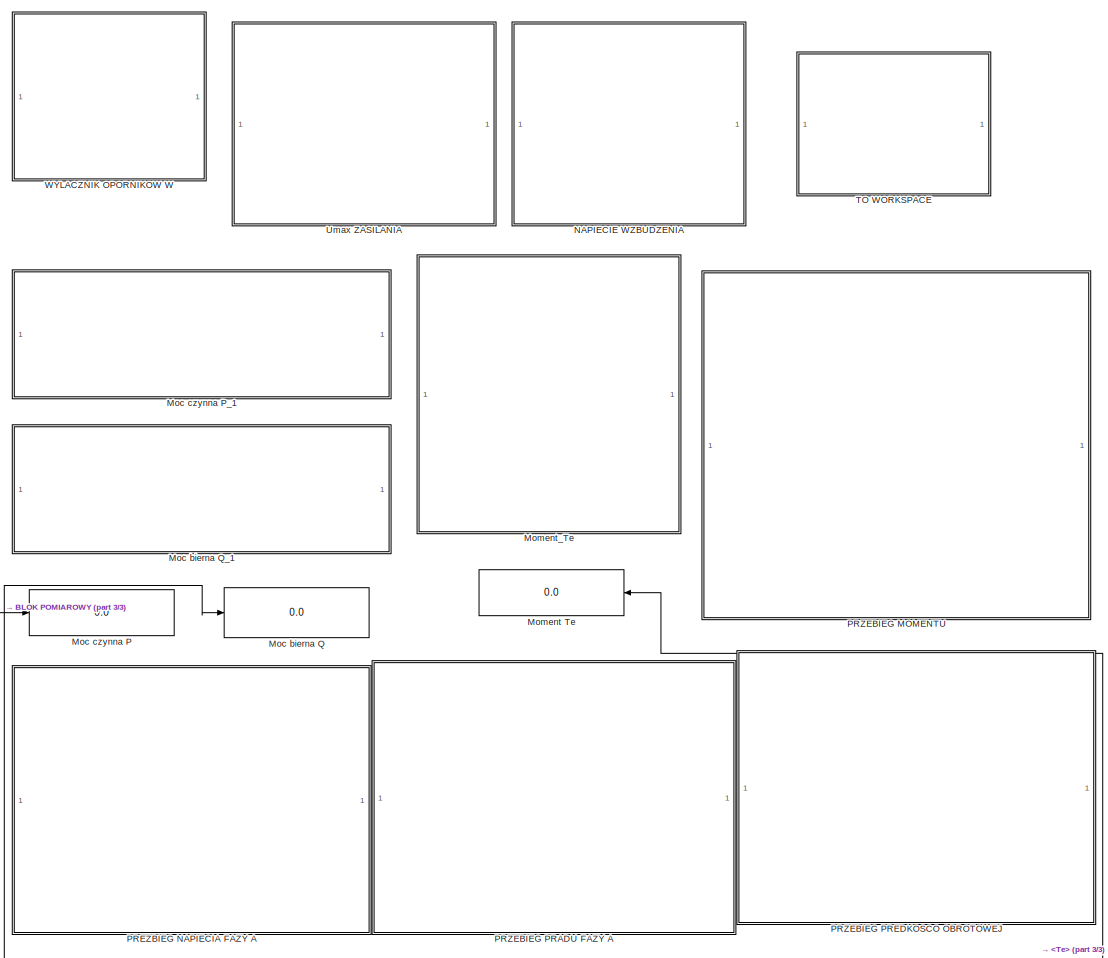
[diagram: root canvas - part 1/3, right side, full height]
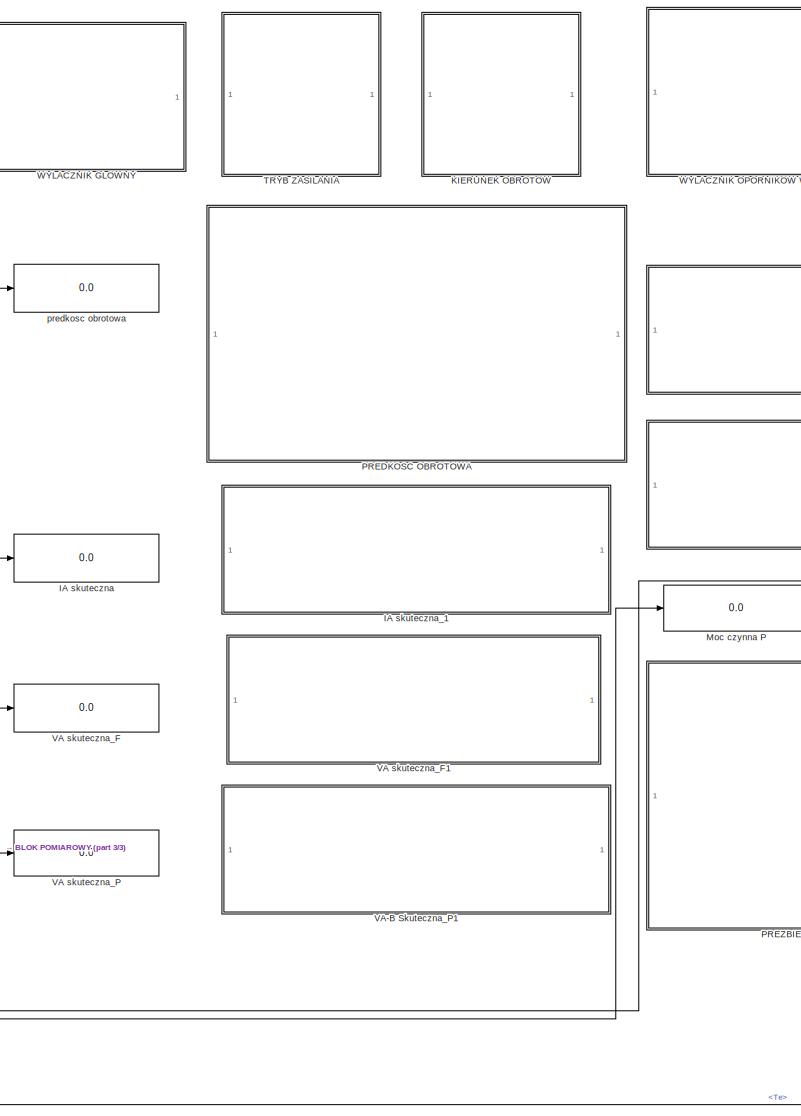
[diagram: root canvas - part 2/3, center side, full height]
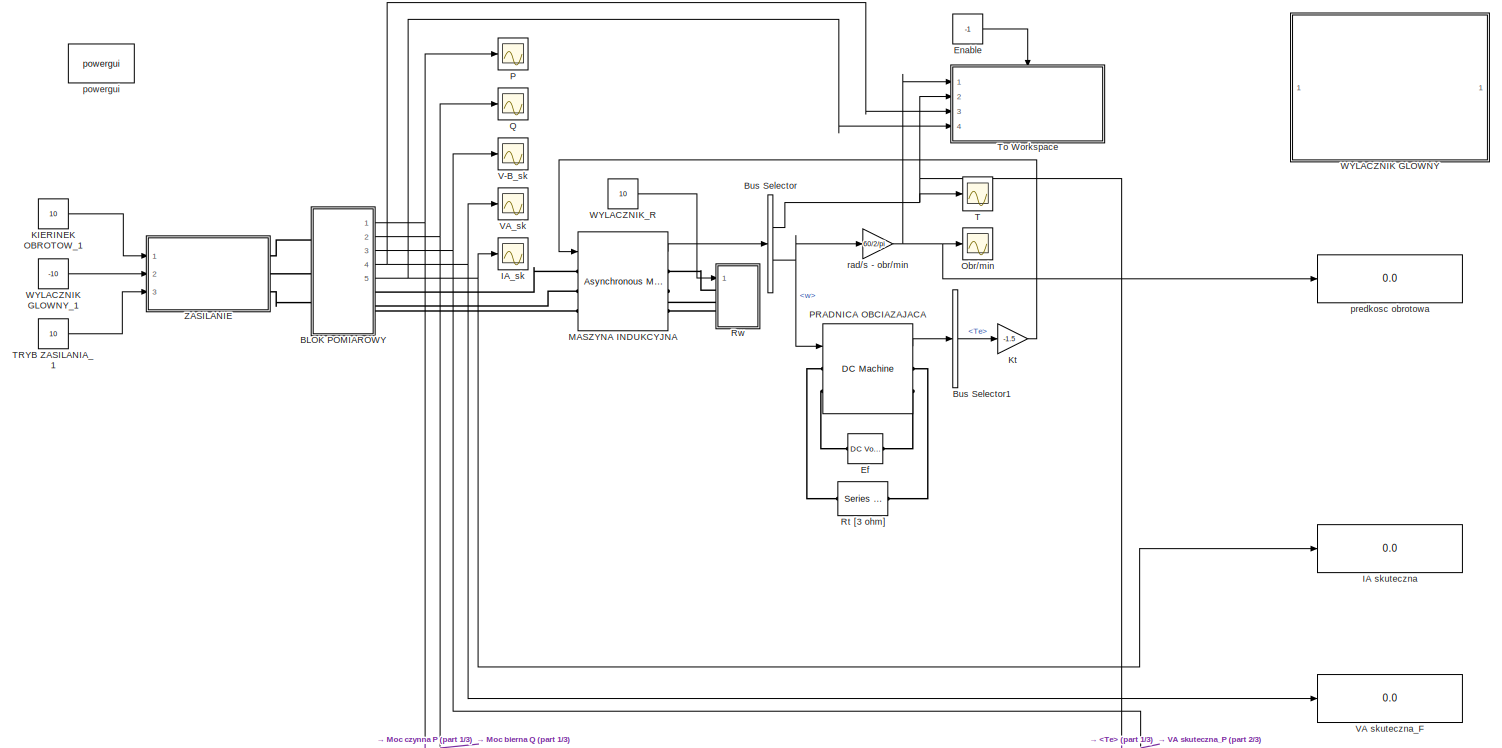
[diagram: root canvas - part 3/3, middle left region]
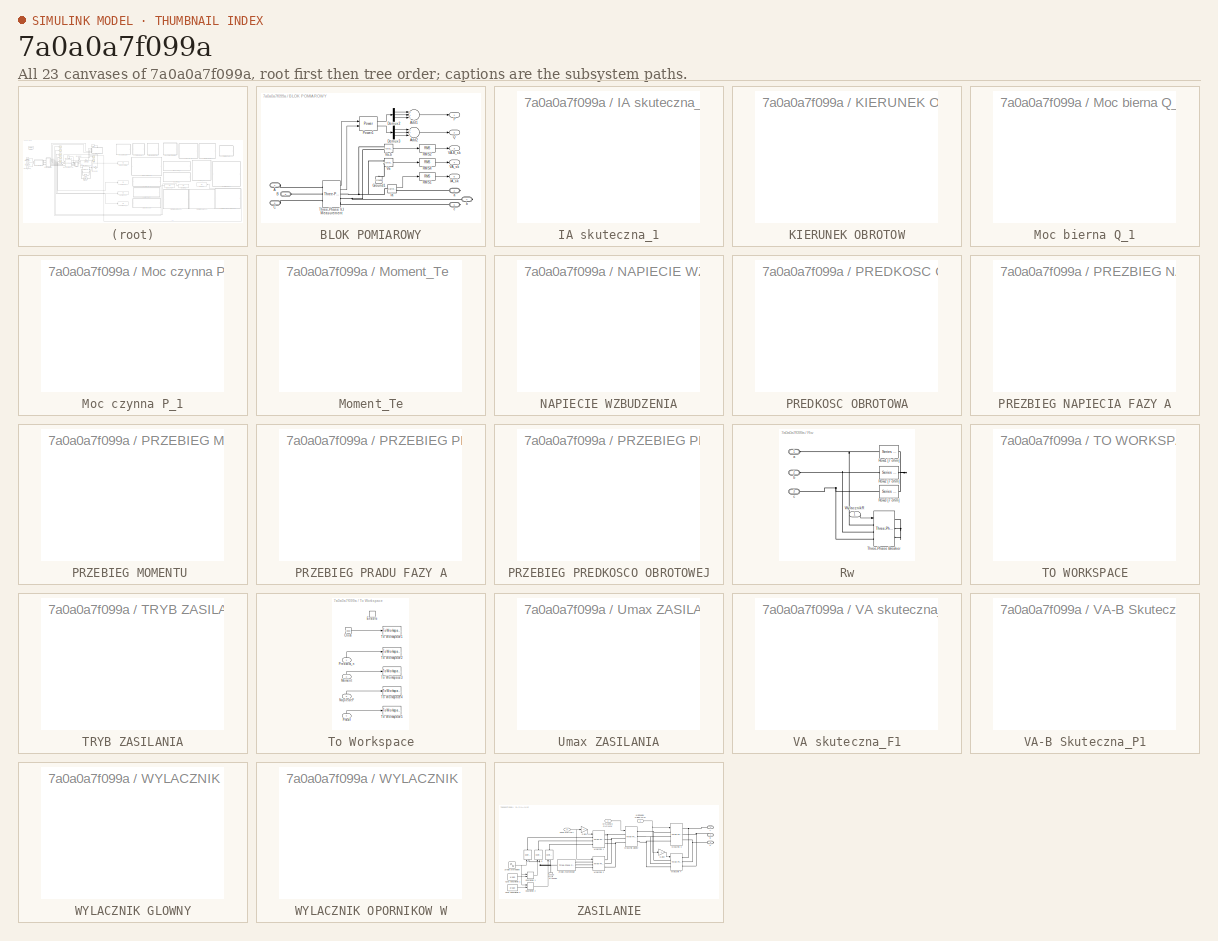
[diagram: thumbnail index - all 23 canvases of the model, root first then tree order]
MODEL slx_7a0a0a7f099a
KIND model
CONFIG AbsTol = auto
CONFIG FixedStep = auto
CONFIG MaxStep = auto
CONFIG MinStep = auto
CONFIG RelTol = auto
CONFIG SampleTimeConstraint = Unconstrained
CONFIG Solver = ode23tb
CONFIG SolverMode = Auto
CONFIG SolverName = ode23tb
CONFIG StartTime = 0.0
CONFIG StopTime = inf
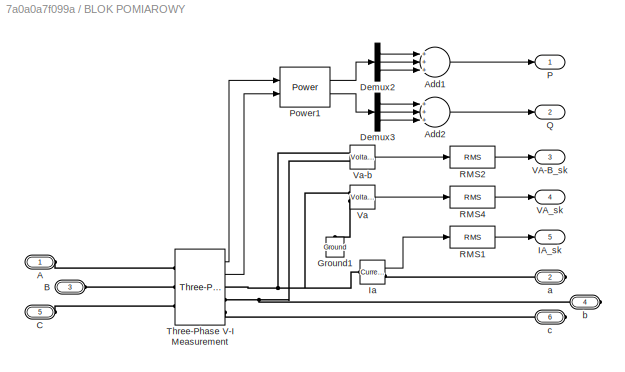
BLOCK [SubSystem] BLOK POMIAROWY
  Ports = [0, 5, 0, 0, 0, 3, 3]
  RequestExecContextInheritance = off
BLOCK [PMIOPort] BLOK POMIAROWY/A
  Port = 1
  Side = Left
BLOCK [Sum] BLOK POMIAROWY/Add1
  InputSameDT = off
  Inputs = +++
  OutDataTypeStr = Inherit: Inherit via internal rule
  Ports = [3, 1]
  SaturateOnIntegerOverflow = off
BLOCK [Sum] BLOK POMIAROWY/Add2
  InputSameDT = off
  Inputs = +++
  OutDataTypeStr = Inherit: Inherit via internal rule
  Ports = [3, 1]
  SaturateOnIntegerOverflow = off
BLOCK [PMIOPort] BLOK POMIAROWY/B
  Port = 3
  Side = Left
BLOCK [PMIOPort] BLOK POMIAROWY/C
  Port = 5
  Side = Left
BLOCK [Demux] BLOK POMIAROWY/Demux2
  DisplayOption = bar
  Outputs = 3
  Ports = [1, 3]
BLOCK [Demux] BLOK POMIAROWY/Demux3
  DisplayOption = bar
  Outputs = 3
  Ports = [1, 3]
BLOCK [Reference] BLOK POMIAROWY/Ground1  REF=powerlib/Elements/Ground
  AttributesFormatString = \n
  LConnTagsString = a
  Ports = [0, 0, 0, 0, 0, 1]
  SourceBlock = powerlib/Elements/Ground
  SourceType = Ground
BLOCK [Outport] BLOK POMIAROWY/IA_sk
  IconDisplay = Port number
  Port = 5
BLOCK [Reference] BLOK POMIAROWY/Ia  REF=powerlib/Measurements/Current Measurement
  OutputType = Complex
  PSBequivalent = 0
  PhasorSimulation = off
  Ports = [0, 1, 0, 0, 0, 1, 1]
  SourceBlock = powerlib/Measurements/Current Measurement
  SourceType = Current Measurement
  UserDataPersistent = on
BLOCK [Outport] BLOK POMIAROWY/P
  IconDisplay = Port number
BLOCK [Reference] BLOK POMIAROWY/Power1  REF=powerlib_meascontrol/Measurements/Power
  Freq = 50
  Iinit = [1, 0]
  Ports = [2, 2]
  SourceBlock = powerlib_meascontrol/Measurements/Power
  SourceType = Power
  Ts = 0
  Vinit = [1, 0]
BLOCK [Outport] BLOK POMIAROWY/Q
  IconDisplay = Port number
  Port = 2
BLOCK [Reference] BLOK POMIAROWY/RMS1  REF=powerlib_meascontrol/Measurements/RMS
  Freq = 50
  Ports = [1, 1]
  RMSInit = 120
  SourceBlock = powerlib_meascontrol/Measurements/RMS
  SourceType = RMS
  TrueRMS = on
  Ts = 0
BLOCK [Reference] BLOK POMIAROWY/RMS2  REF=powerlib_meascontrol/Measurements/RMS
  Freq = 50
  Ports = [1, 1]
  RMSInit = 120
  SourceBlock = powerlib_meascontrol/Measurements/RMS
  SourceType = RMS
  TrueRMS = on
  Ts = 0
BLOCK [Reference] BLOK POMIAROWY/RMS4  REF=powerlib_meascontrol/Measurements/RMS
  Freq = 50
  Ports = [1, 1]
  RMSInit = 120
  SourceBlock = powerlib_meascontrol/Measurements/RMS
  SourceType = RMS
  TrueRMS = on
  Ts = 0
BLOCK [Reference] BLOK POMIAROWY/Three-Phase V-I Measurement  REF=powerlib/Measurements/Three-Phase
V-I Measurement
  CurrentMeasurement = yes
  Ipu = off
  LabelI = Iabc
  LabelV = Vabc
  OutputType = Complex
  PSBequivalent = 0
  Pbase = 100e6
  PhasorSimulation = off
  Ports = [0, 2, 0, 0, 0, 3, 3]
  SetLabelI = off
  SetLabelV = off
  SourceBlock = powerlib/Measurements/Three-Phase\nV-I Measurement
  SourceType = Three-Phase VI Measurement
  Vbase = 500e3
  VoltageMeasurement = phase-to-ground
  Vpu = off
  VpuLL = off
BLOCK [Outport] BLOK POMIAROWY/VA-B_sk
  IconDisplay = Port number
  Port = 3
BLOCK [Outport] BLOK POMIAROWY/VA_sk
  IconDisplay = Port number
  Port = 4
BLOCK [Reference] BLOK POMIAROWY/Va   REF=powerlib/Measurements/Voltage Measurement
  OutputType = Complex
  PSBequivalent = 0
  PhasorSimulation = off
  Ports = [0, 1, 0, 0, 0, 2]
  SourceBlock = powerlib/Measurements/Voltage Measurement
  SourceType = Voltage Measurement
  UserDataPersistent = on
BLOCK [Reference] BLOK POMIAROWY/Va-b  REF=powerlib/Measurements/Voltage Measurement
  OutputType = Complex
  PSBequivalent = 0
  PhasorSimulation = off
  Ports = [0, 1, 0, 0, 0, 2]
  SourceBlock = powerlib/Measurements/Voltage Measurement
  SourceType = Voltage Measurement
  UserDataPersistent = on
BLOCK [PMIOPort] BLOK POMIAROWY/a
  Port = 2
  Side = Right
BLOCK [PMIOPort] BLOK POMIAROWY/b
  Port = 4
  Side = Right
BLOCK [PMIOPort] BLOK POMIAROWY/c
  Port = 6
  Side = Right
BLOCK [BusSelector] Bus Selector
  OutputSignals = Te,w
  Ports = [1, 2]
BLOCK [BusSelector] Bus Selector1
  OutputSignals = Te
  Ports = [1, 1]
BLOCK [Reference] Ef  REF=powerlib/Electrical
Sources/DC Voltage Source
  Amplitude = 0
  AttributesFormatString = \n
  Description = source block
  Measurements = None
  Ports = [0, 0, 0, 0, 0, 1, 1]
  SourceBlock = powerlib/Electrical\nSources/DC Voltage Source
  SourceType = DC Voltage Source
BLOCK [Constant] Enable
  Value = -1
BLOCK [Display] IA skuteczna
  Decimation = 1
  Ports = [1]
BLOCK [SubSystem] IA skuteczna_1
  DialogController = hmiCreateDDGDialog
  IsWebBlock = on
  MaskHideContents = on
  Ports = []
  RequestExecContextInheritance = off
BLOCK [Scope] IA_sk
  Floating = off
  LimitDataPoints = off
  NumInputPorts = 1
  Ports = [1]
  SaveName = ScopeData4
BLOCK [Constant] KIERINEK OBROTOW_1
  Value = 10
BLOCK [SubSystem] KIERUNEK OBROTOW
  DialogController = hmiCreateDDGDialog
  IsWebBlock = on
  MaskHideContents = on
  Ports = []
  RequestExecContextInheritance = off
BLOCK [Gain] Kt
  Gain = -1.5
  OutDataTypeStr = Inherit: Inherit via internal rule
  ParamDataTypeStr = Inherit: Inherit via internal rule
  SaturateOnIntegerOverflow = off
BLOCK [Reference] MASZYNA INDUKCYJNA  REF=powerlib/Machines/Asynchronous Machine
SI Units
  AttributesFormatString = \n
  Cage1 = [ 0.022 0.226/377]
  Cage2 = [ 0.022 0.226/377]
  InitialConditions = [ 1,0   0,0,0   0,0,0 ]
  IterativeModel = Trapezoidal non iterative
  Lm = 0.2389
  LoadFlowParameters = 0
  MeasurementBus = on
  Mechanical = [ 0.55  8.25e-3 2]
  MechanicalLoad = Torque Tm
  NominalParameters = [ 3000, 380, 50 ]
  Pmec = 0
  PolePairs = 2
  Ports = [1, 1, 0, 0, 0, 3, 3]
  PresetModel = No
  ReferenceFrame = Stationary
  Rotor = [ 1.91  0.0106 ]
  RotorType = Wound
  Saturation = [14.03593122, 27.81365428, 53.79336849, 72.68890987, 97.98006896, 148.6815601, 215.7428561, 302.9841135, 428.7778367 ; 230, 322, 414, 460, 506, 552, 598, 644, 690]
  ShowDetailedParameters = on
  SimulateSaturation = off
  SourceBlock = powerlib/Machines/Asynchronous Machine\nSI Units
  SourceType = Asynchronous Machine
  Stator = [ 1.2  0.0106 ]
  TsBlock = -1
  TsPowergui = 0
  Units = SI
BLOCK [Display] Moc bierna Q
  Decimation = 1
  Ports = [1]
BLOCK [SubSystem] Moc bierna Q_1
  DialogController = hmiCreateDDGDialog
  IsWebBlock = on
  MaskHideContents = on
  Ports = []
  RequestExecContextInheritance = off
BLOCK [Display] Moc czynna P
  Decimation = 1
  Ports = [1]
BLOCK [SubSystem] Moc czynna P_1
  DialogController = hmiCreateDDGDialog
  IsWebBlock = on
  MaskHideContents = on
  Ports = []
  RequestExecContextInheritance = off
BLOCK [Display] Moment Te
  Decimation = 1
  Ports = [1]
BLOCK [SubSystem] Moment_Te
  DialogController = hmiCreateDDGDialog
  IsWebBlock = on
  MaskHideContents = on
  Ports = []
  RequestExecContextInheritance = off
BLOCK [SubSystem] NAPIECIE WZBUDZENIA
  DialogController = hmiCreateDDGDialog
  IsWebBlock = on
  MaskHideContents = on
  Ports = []
  RequestExecContextInheritance = off
BLOCK [Scope] Obr//min
  Floating = off
  LimitDataPoints = off
  NumInputPorts = 1
  Ports = [1]
  YMax = 1493.66
  YMin = 1493.64
BLOCK [Scope] P
  Floating = off
  LimitDataPoints = off
  NumInputPorts = 1
  Ports = [1]
  SaveName = ScopeData1
  TimeRange = 0.1315942956302907
  YMax = 1470.2225
  YMin = 1454.8675
BLOCK [Reference] PRADNICA OBCIAZAJACA  REF=powerlib/Machines/DC Machine
  AttributesFormatString = \n
  Bm = 0.002953
  FieldType = Wound
  Ifinit = 1
  J = 0.02215
  Ke = 1.8
  Kt = 1.8
  Laf = 1.236
  MachineConstant = Torque constant (N.m/A)
  MeasurementBus = on
  MechanicalLoad = Speed w
  Ports = [1, 1, 0, 0, 0, 2, 2]
  PresetModel = No
  RLa = [2.5 10.4e-3]
  RLf = [179 4.1]
  ShowDetailedParameters = on
  SourceBlock = powerlib/Machines/DC Machine
  SourceType = DC machine
  Tf = 0.5161
  TsBlock = -1
  TsPowergui = 0
  w0 = 1
BLOCK [SubSystem] PREDKOSC OBROTOWA
  DialogController = hmiCreateDDGDialog
  IsWebBlock = on
  MaskHideContents = on
  Ports = []
  RequestExecContextInheritance = off
BLOCK [SubSystem] PREZBIEG NAPIECIA FAZY A
  DialogController = hmiCreateDDGDialog
  IsWebBlock = on
  MaskHideContents = on
  Ports = []
  RequestExecContextInheritance = off
BLOCK [SubSystem] PRZEBIEG MOMENTU 
  DialogController = hmiCreateDDGDialog
  IsWebBlock = on
  MaskHideContents = on
  Ports = []
  RequestExecContextInheritance = off
BLOCK [SubSystem] PRZEBIEG PRADU FAZY A
  DialogController = hmiCreateDDGDialog
  IsWebBlock = on
  MaskHideContents = on
  Ports = []
  RequestExecContextInheritance = off
BLOCK [SubSystem] PRZEBIEG PREDKOSCO OBROTOWEJ
  DialogController = hmiCreateDDGDialog
  IsWebBlock = on
  MaskHideContents = on
  Ports = []
  RequestExecContextInheritance = off
BLOCK [Scope] Q
  Floating = off
  LimitDataPoints = off
  NumInputPorts = 1
  Ports = [1]
  SaveName = ScopeData2
  TimeRange = 0.1315942956302907
  YMax = 1470.2225
  YMin = 1454.8675
BLOCK [Reference] Rt [3 ohm]  REF=powerlib/Elements/Series RLC Branch
  AttributesFormatString = \n
  BranchType = R
  Capacitance = []
  Inductance = []
  InitialCurrent = 0
  InitialVoltage = 0
  LConnTagsString = __new0
  Measurements = None
  Ports = [0, 0, 0, 0, 0, 1, 1]
  RConnTagsString = __new0
  Resistance = 3
  SetiL0 = off
  Setx0 = off
  SourceBlock = powerlib/Elements/Series RLC Branch
  SourceType = Series RLC Branch
BLOCK [SubSystem] Rw
  Ports = [1, 0, 0, 0, 0, 3]
  RequestExecContextInheritance = off
BLOCK [Reference] Rw/Row1 [7 ohm]  REF=powerlib/Elements/Series RLC Branch
  AttributesFormatString = \n
  BranchType = R
  Capacitance = []
  Inductance = []
  InitialCurrent = 0
  InitialVoltage = 0
  LConnTagsString = __new0
  Measurements = None
  Ports = [0, 0, 0, 0, 0, 1, 1]
  RConnTagsString = __new0
  Resistance = 7
  SetiL0 = off
  Setx0 = off
  SourceBlock = powerlib/Elements/Series RLC Branch
  SourceType = Series RLC Branch
BLOCK [Reference] Rw/Row2 [7 ohm]  REF=powerlib/Elements/Series RLC Branch
  AttributesFormatString = \n
  BranchType = R
  Capacitance = []
  Inductance = []
  InitialCurrent = 0
  InitialVoltage = 0
  LConnTagsString = __new0
  Measurements = None
  Ports = [0, 0, 0, 0, 0, 1, 1]
  RConnTagsString = __new0
  Resistance = 7
  SetiL0 = off
  Setx0 = off
  SourceBlock = powerlib/Elements/Series RLC Branch
  SourceType = Series RLC Branch
BLOCK [Reference] Rw/Row3 [7 ohm]  REF=powerlib/Elements/Series RLC Branch
  AttributesFormatString = \n
  BranchType = R
  Capacitance = []
  Inductance = []
  InitialCurrent = 0
  InitialVoltage = 0
  LConnTagsString = __new0
  Measurements = None
  Ports = [0, 0, 0, 0, 0, 1, 1]
  RConnTagsString = __new0
  Resistance = 7
  SetiL0 = off
  Setx0 = off
  SourceBlock = powerlib/Elements/Series RLC Branch
  SourceType = Series RLC Branch
BLOCK [Reference] Rw/Three-Phase Breaker  REF=powerlib/Elements/Three-Phase Breaker
  BreakerResistance = 0.01
  External = on
  InitialState = open
  Measurements = None
  Ports = [1, 0, 0, 0, 0, 3, 3]
  SnubberCapacitance = inf
  SnubberResistance = 1e6
  SourceBlock = powerlib/Elements/Three-Phase Breaker
  SourceType = Three-Phase Breaker
  SwitchA = on
  SwitchB = on
  SwitchC = on
  SwitchTimes = [1/60  5/60]
BLOCK [Inport] Rw/WylacznikR
  IconDisplay = Port number
BLOCK [PMIOPort] Rw/a
  Port = 1
  Side = Left
BLOCK [PMIOPort] Rw/b
  Port = 2
  Side = Left
BLOCK [PMIOPort] Rw/c
  Port = 3
  Side = Left
BLOCK [Scope] T
  Floating = off
  LimitDataPoints = off
  NumInputPorts = 1
  Ports = [1]
  SaveName = ScopeData6
BLOCK [SubSystem] TO WORKSPACE
  DialogController = hmiCreateDDGDialog
  IsWebBlock = on
  MaskHideContents = on
  Ports = []
  RequestExecContextInheritance = off
BLOCK [SubSystem] TRYB ZASILANIA
  DialogController = hmiCreateDDGDialog
  IsWebBlock = on
  MaskHideContents = on
  Ports = []
  RequestExecContextInheritance = off
BLOCK [Constant] TRYB ZASILANIA_1
  Value = 10
BLOCK [SubSystem] To Workspace
  Ports = [4, 0, 1]
  RequestExecContextInheritance = off
BLOCK [Clock] To Workspace/Clock
BLOCK [EnablePort] To Workspace/Enable
  Ports = []
BLOCK [Inport] To Workspace/Moment
  IconDisplay = Port number
  Port = 2
BLOCK [Inport] To Workspace/NapiecieF
  IconDisplay = Port number
  Port = 3
BLOCK [Inport] To Workspace/Pradf
  IconDisplay = Port number
  Port = 4
BLOCK [Inport] To Workspace/Predkocs_n
  IconDisplay = Port number
BLOCK [ToWorkspace] To Workspace/To Workspace1
  FixptAsFi = on
  MaxDataPoints = inf
  Ports = [1]
  SampleTime = -1
  Save2DSignal = 3-D array (concatenate along third dimension)
  SaveFormat = Timeseries
  VariableName = czas
BLOCK [ToWorkspace] To Workspace/To Workspace2
  FixptAsFi = on
  MaxDataPoints = inf
  Ports = [1]
  SampleTime = -1
  Save2DSignal = 3-D array (concatenate along third dimension)
  SaveFormat = Timeseries
  VariableName = predkosc_n
BLOCK [ToWorkspace] To Workspace/To Workspace3
  FixptAsFi = on
  MaxDataPoints = inf
  Ports = [1]
  SampleTime = -1
  Save2DSignal = 3-D array (concatenate along third dimension)
  SaveFormat = Timeseries
  VariableName = moment
BLOCK [ToWorkspace] To Workspace/To Workspace4
  FixptAsFi = on
  MaxDataPoints = inf
  Ports = [1]
  SampleTime = -1
  Save2DSignal = 3-D array (concatenate along third dimension)
  SaveFormat = Timeseries
  VariableName = NapiecieF
BLOCK [ToWorkspace] To Workspace/To Workspace5
  FixptAsFi = on
  MaxDataPoints = inf
  Ports = [1]
  SampleTime = -1
  Save2DSignal = 3-D array (concatenate along third dimension)
  SaveFormat = Timeseries
  VariableName = PradF
BLOCK [SubSystem] Umax ZASILANIA
  DialogController = hmiCreateDDGDialog
  IsWebBlock = on
  MaskHideContents = on
  Ports = []
  RequestExecContextInheritance = off
BLOCK [Scope] V-B_sk
  Floating = off
  LimitDataPoints = off
  NumInputPorts = 1
  Ports = [1]
  SaveName = ScopeData5
BLOCK [Display] VA skuteczna_F
  Decimation = 1
  Ports = [1]
BLOCK [SubSystem] VA skuteczna_F1
  DialogController = hmiCreateDDGDialog
  IsWebBlock = on
  MaskHideContents = on
  Ports = []
  RequestExecContextInheritance = off
BLOCK [Display] VA skuteczna_P
  Decimation = 1
  Ports = [1]
BLOCK [SubSystem] VA-B Skuteczna_P1
  DialogController = hmiCreateDDGDialog
  IsWebBlock = on
  MaskHideContents = on
  Ports = []
  RequestExecContextInheritance = off
BLOCK [Scope] VA_sk
  Floating = off
  LimitDataPoints = off
  NumInputPorts = 1
  Ports = [1]
  SaveName = ScopeData3
BLOCK [SubSystem] WYLACZNIK GLOWNY
  DialogController = hmiCreateDDGDialog
  IsWebBlock = on
  MaskHideContents = on
  Ports = []
  RequestExecContextInheritance = off
BLOCK [Constant] WYLACZNIK GLOWNY_1
  Value = -10
BLOCK [SubSystem] WYLACZNIK OPORNIKOW W
  DialogController = hmiCreateDDGDialog
  IsWebBlock = on
  MaskHideContents = on
  Ports = []
  RequestExecContextInheritance = off
BLOCK [Constant] WYLACZNIK_R
  Value = 10
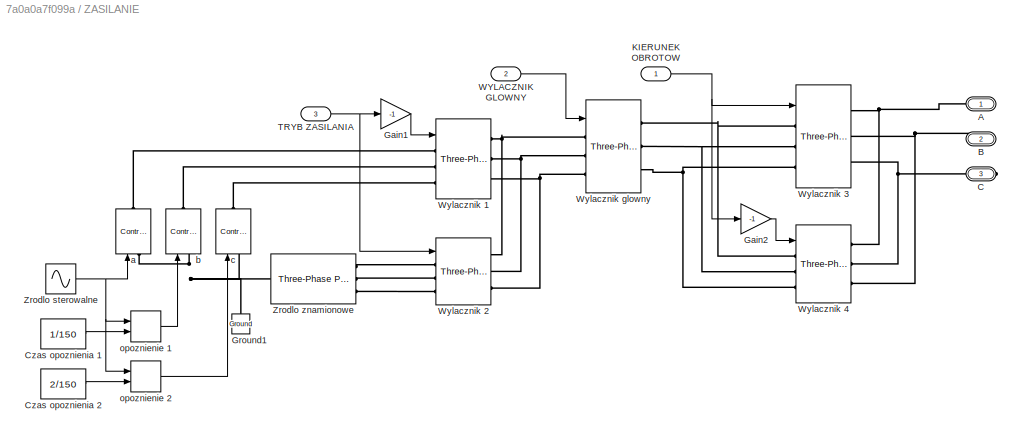
BLOCK [SubSystem] ZASILANIE
  Ports = [3, 0, 0, 0, 0, 0, 3]
  RequestExecContextInheritance = off
BLOCK [PMIOPort] ZASILANIE/A
  Port = 1
  Side = Right
BLOCK [PMIOPort] ZASILANIE/B
  Port = 2
  Side = Right
BLOCK [PMIOPort] ZASILANIE/C
  Port = 3
  Side = Right
BLOCK [Constant] ZASILANIE/Czas opoznienia 1
  Value = 1/150
BLOCK [Constant] ZASILANIE/Czas opoznienia 2
  Value = 2/150
BLOCK [Gain] ZASILANIE/Gain1
  Gain = -1
  OutDataTypeStr = Inherit: Inherit via internal rule
  ParamDataTypeStr = Inherit: Inherit via internal rule
  SaturateOnIntegerOverflow = off
BLOCK [Gain] ZASILANIE/Gain2
  Gain = -1
  OutDataTypeStr = Inherit: Inherit via internal rule
  ParamDataTypeStr = Inherit: Inherit via internal rule
  SaturateOnIntegerOverflow = off
BLOCK [Reference] ZASILANIE/Ground1  REF=powerlib/Elements/Ground
  AttributesFormatString = \n
  LConnTagsString = a
  Ports = [0, 0, 0, 0, 0, 1]
  SourceBlock = powerlib/Elements/Ground
  SourceType = Ground
BLOCK [Inport] ZASILANIE/KIERUNEK OBROTOW
  IconDisplay = Port number
BLOCK [Inport] ZASILANIE/TRYB ZASILANIA
  IconDisplay = Port number
  Port = 3
BLOCK [Inport] ZASILANIE/WYLACZNIK GLOWNY
  IconDisplay = Port number
  Port = 2
BLOCK [Reference] ZASILANIE/Wylacznik  1  REF=powerlib/Elements/Three-Phase Breaker
  BreakerResistance = 0.01
  External = on
  InitialState = open
  Measurements = None
  Ports = [1, 0, 0, 0, 0, 3, 3]
  SnubberCapacitance = inf
  SnubberResistance = 1e6
  SourceBlock = powerlib/Elements/Three-Phase Breaker
  SourceType = Three-Phase Breaker
  SwitchA = on
  SwitchB = on
  SwitchC = on
  SwitchTimes = [1/60  5/60]
BLOCK [Reference] ZASILANIE/Wylacznik 2  REF=powerlib/Elements/Three-Phase Breaker
  BreakerResistance = 0.01
  External = on
  InitialState = open
  Measurements = None
  Ports = [1, 0, 0, 0, 0, 3, 3]
  SnubberCapacitance = inf
  SnubberResistance = 1e6
  SourceBlock = powerlib/Elements/Three-Phase Breaker
  SourceType = Three-Phase Breaker
  SwitchA = on
  SwitchB = on
  SwitchC = on
  SwitchTimes = [1/60  5/60]
BLOCK [Reference] ZASILANIE/Wylacznik 3  REF=powerlib/Elements/Three-Phase Breaker
  BreakerResistance = 0.01
  External = on
  InitialState = open
  Measurements = None
  Ports = [1, 0, 0, 0, 0, 3, 3]
  SnubberCapacitance = inf
  SnubberResistance = 1e6
  SourceBlock = powerlib/Elements/Three-Phase Breaker
  SourceType = Three-Phase Breaker
  SwitchA = on
  SwitchB = on
  SwitchC = on
  SwitchTimes = [1/60  5/60]
BLOCK [Reference] ZASILANIE/Wylacznik 4  REF=powerlib/Elements/Three-Phase Breaker
  BreakerResistance = 0.01
  External = on
  InitialState = open
  Measurements = None
  Ports = [1, 0, 0, 0, 0, 3, 3]
  SnubberCapacitance = inf
  SnubberResistance = 1e6
  SourceBlock = powerlib/Elements/Three-Phase Breaker
  SourceType = Three-Phase Breaker
  SwitchA = on
  SwitchB = on
  SwitchC = on
  SwitchTimes = [1/60  5/60]
BLOCK [Reference] ZASILANIE/Wylacznik glowny  REF=powerlib/Elements/Three-Phase Breaker
  BreakerResistance = 0.01
  External = on
  InitialState = open
  Measurements = None
  Ports = [1, 0, 0, 0, 0, 3, 3]
  SnubberCapacitance = inf
  SnubberResistance = 1e6
  SourceBlock = powerlib/Elements/Three-Phase Breaker
  SourceType = Three-Phase Breaker
  SwitchA = on
  SwitchB = on
  SwitchC = on
  SwitchTimes = [1/60  5/60]
BLOCK [Sin] ZASILANIE/Zrodlo sterowalne
  Amplitude = 0
  Frequency = 100*pi
  Ports = [0, 1]
  SampleTime = 0
BLOCK [Reference] ZASILANIE/Zrodlo znamionowe  REF=powerlib/Electrical
Sources/Three-Phase
Programmable
Voltage Source
  Amplitudes = [1 0.8 1.2 1.0]
  BusType = swing
  HarmonicA = [3 0.2 -25 0]
  HarmonicB = [2 0.15 35 2]
  HarmonicGeneration = off
  Ports = [0, 0, 0, 0, 0, 1, 3]
  PositiveSequence = [380  0 50]
  Pref = 0
  Qmax = inf
  Qmin = -inf
  Qref = 0
  SourceBlock = powerlib/Electrical\nSources/Three-Phase\nProgrammable\nVoltage Source
  SourceType = Three-Phase Programmable Voltage Source
  TimeValues = [0 0.1 0.15 0.2]
  Timing = [0.05  3]
  VariationEntity = None
  VariationFrequency = 2
  VariationMagnitude = 0.3
  VariationPhaseA = off
  VariationRate = 10
  VariationStep = 0.5
  VariationTiming = [1 2]
  VariationType = Table of time-amplitude pairs
  VariationTypeAlt = Step
BLOCK [Reference] ZASILANIE/a  REF=powerlib/Electrical
Sources/Controlled Voltage Source
  Amplitude = 0
  Frequency = 0
  Initialize = on
  Measurements = None
  Phase = 0
  Ports = [1, 0, 0, 0, 0, 1, 1]
  SourceBlock = powerlib/Electrical\nSources/Controlled Voltage Source
  SourceType = Controlled Voltage Source
  Source_Type = AC
BLOCK [Reference] ZASILANIE/b  REF=powerlib/Electrical
Sources/Controlled Voltage Source
  Amplitude = 0
  Frequency = 0
  Initialize = on
  Measurements = None
  Phase = 120
  Ports = [1, 0, 0, 0, 0, 1, 1]
  SourceBlock = powerlib/Electrical\nSources/Controlled Voltage Source
  SourceType = Controlled Voltage Source
  Source_Type = AC
BLOCK [Reference] ZASILANIE/c  REF=powerlib/Electrical
Sources/Controlled Voltage Source
  Amplitude = 0
  Frequency = 0
  Initialize = on
  Measurements = None
  Phase = -120
  Ports = [1, 0, 0, 0, 0, 1, 1]
  SourceBlock = powerlib/Electrical\nSources/Controlled Voltage Source
  SourceType = Controlled Voltage Source
  Source_Type = AC
BLOCK [VariableTransportDelay] ZASILANIE/opoznienie 1
  MaximumDelay = 10
  Ports = [2, 1]
BLOCK [VariableTransportDelay] ZASILANIE/opoznienie 2
  MaximumDelay = 10
  Ports = [2, 1]
BLOCK [Reference] powergui  REF=powerlib/powergui
  DisableRonSwitches = off
  DisableSnubberDevices = off
  DisableVfSwitches = off
  DisplayEquations = off
  DisplayStyle = 1
  EnableUseOfTLC = off
  ErrMax = 1e-4
  Frange = [0:2:500]
  FreqAxis = off
  FunctionMessages = off
  HookPort = off
  Interpol = off
  Iterations = 50
  MaxFrequency = 1000
  Pbase = 100e6
  Ports = []
  Priority = 1
  ResistiveCurrentMeasurement = off
  RestoreLinks = warning
  RmsSteady = 1
  SPID = on
  SampleTime = 50e-6
  ShowGrid = off
  SolverType = Tustin/Backward Euler (TBE)
  SourceBlock = powerlib/powergui
  SourceType = PSB option menu block
  StartTime = 0.0
  SwTol = 0
  Ts = 100
  UnitsV = kV
  UnitsW = MW
  UserDataPersistent = on
  Xlog = on
  Ylog = off
  ZoomFFT = off
  buscounter = 0
  cycles = 1
  display = off
  echomessages = off
  frequency = 60
  frequencyindice = 0
  frequencyindicesteady = 1
  fundamental = 60
  methode = off
  save = off
  structure = 0
  variable = ZData
  x0status = blocks
BLOCK [Display] predkosc obrotowa
  Decimation = 1
  Ports = [1]
BLOCK [Gain] rad//s - obr//min
  Gain = 60/2/pi
  OutDataTypeStr = Inherit: Inherit via internal rule
  ParamDataTypeStr = Inherit: Inherit via internal rule
  SaturateOnIntegerOverflow = off
LINE BLOK POMIAROWY/Add1:1 -> BLOK POMIAROWY/P:1
LINE BLOK POMIAROWY/Add2:1 -> BLOK POMIAROWY/Q:1
LINE BLOK POMIAROWY/Demux2:1 -> BLOK POMIAROWY/Add1:1
LINE BLOK POMIAROWY/Demux2:2 -> BLOK POMIAROWY/Add1:2
LINE BLOK POMIAROWY/Demux2:3 -> BLOK POMIAROWY/Add1:3
LINE BLOK POMIAROWY/Demux3:1 -> BLOK POMIAROWY/Add2:1
LINE BLOK POMIAROWY/Demux3:2 -> BLOK POMIAROWY/Add2:2
LINE BLOK POMIAROWY/Demux3:3 -> BLOK POMIAROWY/Add2:3
LINE BLOK POMIAROWY/Ia:1 -> BLOK POMIAROWY/RMS1:1
LINE BLOK POMIAROWY/Power1:1 -> BLOK POMIAROWY/Demux2:1
LINE BLOK POMIAROWY/Power1:2 -> BLOK POMIAROWY/Demux3:1
LINE BLOK POMIAROWY/RMS1:1 -> BLOK POMIAROWY/IA_sk:1
LINE BLOK POMIAROWY/RMS2:1 -> BLOK POMIAROWY/VA-B_sk:1
LINE BLOK POMIAROWY/RMS4:1 -> BLOK POMIAROWY/VA_sk:1
LINE BLOK POMIAROWY/Three-Phase V-I Measurement:1 -> BLOK POMIAROWY/Power1:1
LINE BLOK POMIAROWY/Three-Phase V-I Measurement:2 -> BLOK POMIAROWY/Power1:2
LINE BLOK POMIAROWY/Va :1 -> BLOK POMIAROWY/RMS4:1
LINE BLOK POMIAROWY/Va-b:1 -> BLOK POMIAROWY/RMS2:1
NET BLOK POMIAROWY:1 -> Moc czynna P:1, P:1
NET BLOK POMIAROWY:2 -> Moc bierna Q:1, Q:1
NET BLOK POMIAROWY:3 -> V-B_sk:1, VA skuteczna_P:1
NET BLOK POMIAROWY:4 -> To Workspace:3, VA skuteczna_F:1, VA_sk:1
NET BLOK POMIAROWY:5 -> IA skuteczna:1, IA_sk:1, To Workspace:4
LINE Bus Selector1:1 -> Kt:1
NET Bus Selector:1 -> Moment Te:1, T:1, To Workspace:2
NET Bus Selector:2 -> PRADNICA OBCIAZAJACA:1, rad//s - obr//min:1
LINE Enable:1 -> To Workspace:enable
LINE KIERINEK OBROTOW_1:1 -> ZASILANIE:1
LINE Kt:1 -> MASZYNA INDUKCYJNA:1
LINE MASZYNA INDUKCYJNA:1 -> Bus Selector:1
LINE PRADNICA OBCIAZAJACA:1 -> Bus Selector1:1
LINE Rw/WylacznikR:1 -> Rw/Three-Phase Breaker:1
LINE TRYB ZASILANIA_1:1 -> ZASILANIE:3
LINE To Workspace/Clock:1 -> To Workspace/To Workspace1:1
LINE To Workspace/Moment:1 -> To Workspace/To Workspace3:1
LINE To Workspace/NapiecieF:1 -> To Workspace/To Workspace4:1
LINE To Workspace/Pradf:1 -> To Workspace/To Workspace5:1
LINE To Workspace/Predkocs_n:1 -> To Workspace/To Workspace2:1
LINE WYLACZNIK GLOWNY_1:1 -> ZASILANIE:2
LINE WYLACZNIK_R:1 -> Rw:1
LINE ZASILANIE/Czas opoznienia 1:1 -> ZASILANIE/opoznienie 1:2
LINE ZASILANIE/Czas opoznienia 2:1 -> ZASILANIE/opoznienie 2:2
LINE ZASILANIE/Gain1:1 -> ZASILANIE/Wylacznik  1:1
LINE ZASILANIE/Gain2:1 -> ZASILANIE/Wylacznik 4:1
NET ZASILANIE/KIERUNEK OBROTOW:1 -> ZASILANIE/Gain2:1, ZASILANIE/Wylacznik 3:1
NET ZASILANIE/TRYB ZASILANIA:1 -> ZASILANIE/Gain1:1, ZASILANIE/Wylacznik 2:1
LINE ZASILANIE/WYLACZNIK GLOWNY:1 -> ZASILANIE/Wylacznik glowny:1
NET ZASILANIE/Zrodlo sterowalne:1 -> ZASILANIE/a:1, ZASILANIE/opoznienie 1:1, ZASILANIE/opoznienie 2:1
LINE ZASILANIE/opoznienie 1:1 -> ZASILANIE/b:1
LINE ZASILANIE/opoznienie 2:1 -> ZASILANIE/c:1
NET rad//s - obr//min:1 -> Obr//min:1, To Workspace:1, predkosc obrotowa:1
PLINE BLOK POMIAROWY/A:RConn1 -- BLOK POMIAROWY/Three-Phase V-I Measurement:LConn1
PLINE BLOK POMIAROWY/B:RConn1 -- BLOK POMIAROWY/Three-Phase V-I Measurement:LConn2
PLINE BLOK POMIAROWY/C:RConn1 -- BLOK POMIAROWY/Three-Phase V-I Measurement:LConn3
PLINE BLOK POMIAROWY/Ground1:LConn1 -- BLOK POMIAROWY/Va :LConn2
PNET net1: BLOK POMIAROWY/Ia:LConn1 -- BLOK POMIAROWY/Three-Phase V-I Measurement:RConn1 -- BLOK POMIAROWY/Va :LConn1 -- BLOK POMIAROWY/Va-b:LConn1
PLINE BLOK POMIAROWY/Ia:RConn1 -- BLOK POMIAROWY/a:RConn1
PNET net2: BLOK POMIAROWY/Three-Phase V-I Measurement:RConn2 -- BLOK POMIAROWY/Va-b:LConn2 -- BLOK POMIAROWY/b:RConn1
PLINE BLOK POMIAROWY/Three-Phase V-I Measurement:RConn3 -- BLOK POMIAROWY/c:RConn1
PLINE BLOK POMIAROWY:LConn1 -- ZASILANIE:RConn1
PLINE BLOK POMIAROWY:LConn2 -- ZASILANIE:RConn2
PLINE BLOK POMIAROWY:LConn3 -- ZASILANIE:RConn3
PLINE BLOK POMIAROWY:RConn1 -- MASZYNA INDUKCYJNA:LConn1
PLINE BLOK POMIAROWY:RConn2 -- MASZYNA INDUKCYJNA:LConn2
PLINE BLOK POMIAROWY:RConn3 -- MASZYNA INDUKCYJNA:LConn3
PLINE Ef:LConn1 -- PRADNICA OBCIAZAJACA:RConn2
PLINE Ef:RConn1 -- PRADNICA OBCIAZAJACA:LConn2
PLINE MASZYNA INDUKCYJNA:RConn1 -- Rw:LConn1
PLINE MASZYNA INDUKCYJNA:RConn2 -- Rw:LConn2
PLINE MASZYNA INDUKCYJNA:RConn3 -- Rw:LConn3
PLINE PRADNICA OBCIAZAJACA:LConn1 -- Rt [3 ohm]:LConn1
PLINE PRADNICA OBCIAZAJACA:RConn1 -- Rt [3 ohm]:RConn1
PNET net3: Rw/Row1 [7 ohm]:LConn1 -- Rw/Three-Phase Breaker:LConn1 -- Rw/a:RConn1
PNET net4: Rw/Row1 [7 ohm]:RConn1 -- Rw/Row2 [7 ohm]:RConn1 -- Rw/Row3 [7 ohm]:RConn1
PNET net5: Rw/Row2 [7 ohm]:LConn1 -- Rw/Three-Phase Breaker:LConn2 -- Rw/b:RConn1
PNET net6: Rw/Row3 [7 ohm]:LConn1 -- Rw/Three-Phase Breaker:LConn3 -- Rw/c:RConn1
PNET net7: Rw/Three-Phase Breaker:RConn1 -- Rw/Three-Phase Breaker:RConn2 -- Rw/Three-Phase Breaker:RConn3
PNET net8: ZASILANIE/A:RConn1 -- ZASILANIE/Wylacznik 3:RConn1 -- ZASILANIE/Wylacznik 4:RConn1
PNET net9: ZASILANIE/B:RConn1 -- ZASILANIE/Wylacznik 3:RConn2 -- ZASILANIE/Wylacznik 4:RConn3
PNET net10: ZASILANIE/C:RConn1 -- ZASILANIE/Wylacznik 3:RConn3 -- ZASILANIE/Wylacznik 4:RConn2
PNET net11: ZASILANIE/Ground1:LConn1 -- ZASILANIE/Zrodlo znamionowe:LConn1 -- ZASILANIE/a:LConn1 -- ZASILANIE/b:LConn1 -- ZASILANIE/c:LConn1
PLINE ZASILANIE/Wylacznik  1:LConn1 -- ZASILANIE/a:RConn1
PLINE ZASILANIE/Wylacznik  1:LConn2 -- ZASILANIE/b:RConn1
PLINE ZASILANIE/Wylacznik  1:LConn3 -- ZASILANIE/c:RConn1
PNET net12: ZASILANIE/Wylacznik  1:RConn1 -- ZASILANIE/Wylacznik 2:RConn1 -- ZASILANIE/Wylacznik glowny:LConn1
PNET net13: ZASILANIE/Wylacznik  1:RConn2 -- ZASILANIE/Wylacznik 2:RConn2 -- ZASILANIE/Wylacznik glowny:LConn2
PNET net14: ZASILANIE/Wylacznik  1:RConn3 -- ZASILANIE/Wylacznik 2:RConn3 -- ZASILANIE/Wylacznik glowny:LConn3
PLINE ZASILANIE/Wylacznik 2:LConn1 -- ZASILANIE/Zrodlo znamionowe:RConn1
PLINE ZASILANIE/Wylacznik 2:LConn2 -- ZASILANIE/Zrodlo znamionowe:RConn2
PLINE ZASILANIE/Wylacznik 2:LConn3 -- ZASILANIE/Zrodlo znamionowe:RConn3
PNET net15: ZASILANIE/Wylacznik 3:LConn1 -- ZASILANIE/Wylacznik 4:LConn1 -- ZASILANIE/Wylacznik glowny:RConn1
PNET net16: ZASILANIE/Wylacznik 3:LConn2 -- ZASILANIE/Wylacznik 4:LConn2 -- ZASILANIE/Wylacznik glowny:RConn2
PNET net17: ZASILANIE/Wylacznik 3:LConn3 -- ZASILANIE/Wylacznik 4:LConn3 -- ZASILANIE/Wylacznik glowny:RConn3
note: NET lines group one-source signal fan-out (src -> all destinations, sorted); 1:1 wires keep LINE; PNET lines group multi-terminal physical nets as a canonical sorted terminal list (undirected conserving connections); 2-terminal nets keep the pairwise PLINE form
